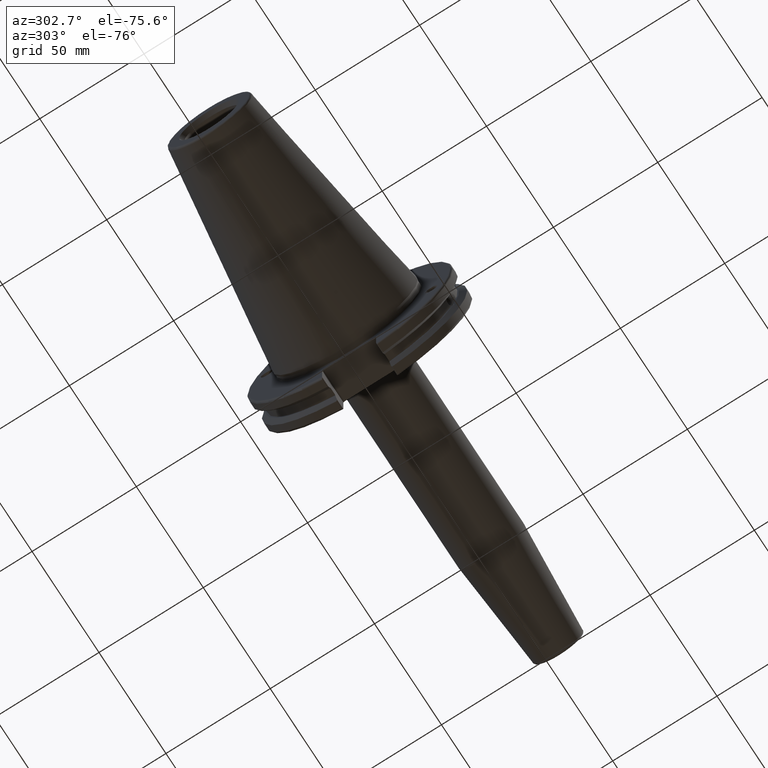
[diagram: clean part render]
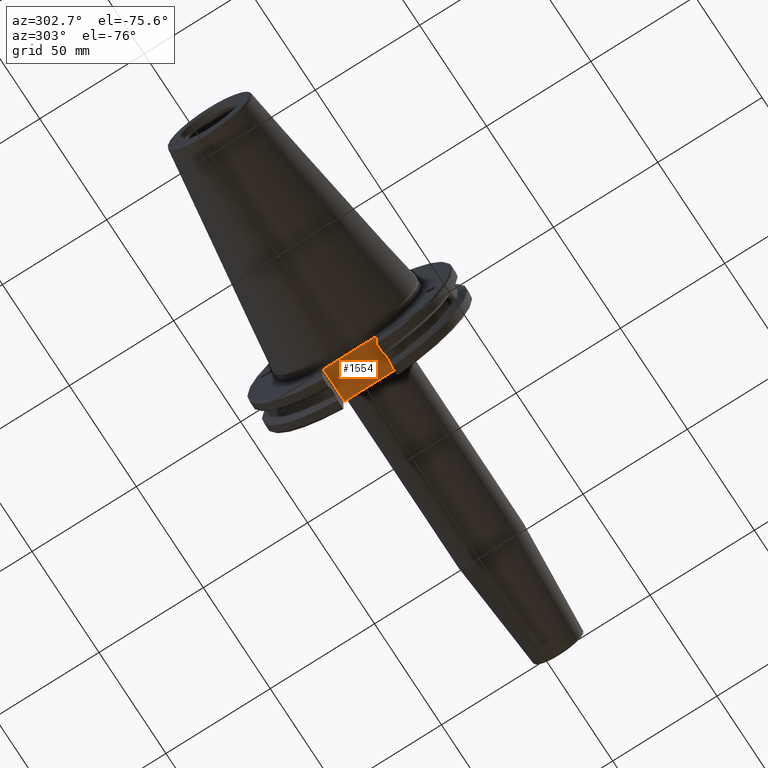
[diagram: same view with one face highlighted and labeled with its STEP entity id]
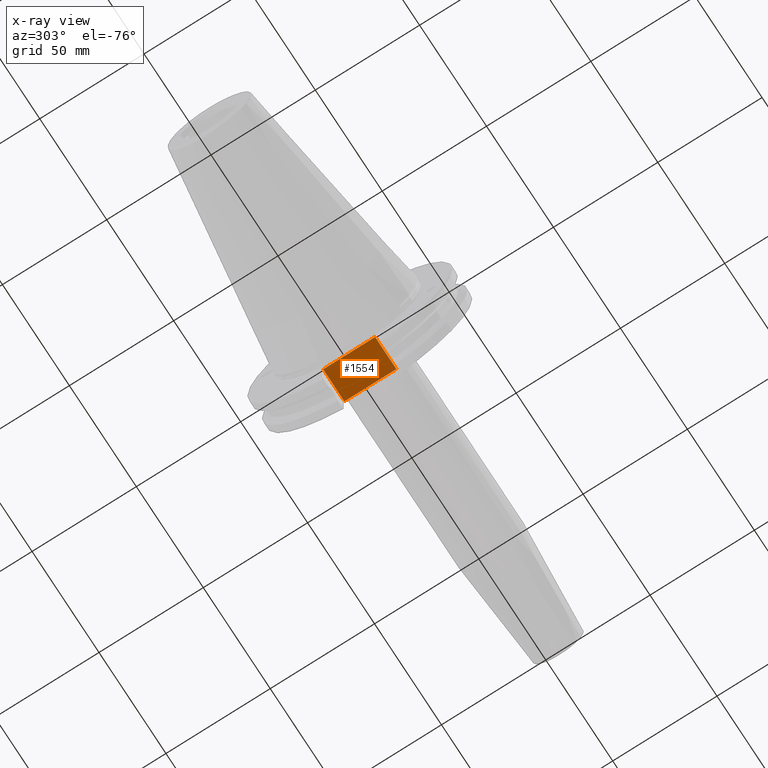
[diagram: x-ray of the same camera — body ghosted, the highlighted face saturated]
A machine part, auxiliary view. The second image highlights one B-rep face of the part: STEP entity #1554.
The next image is the same camera in x-ray: the body ghosted, the highlighted face saturated — about 0% of this face is hidden behind the body in this view.
In plain terms, the highlighted planar face has unit normal (0, 0, 1).
Its self-contained STEP definition (entity closure, byte-faithful):
#113=PLANE('',#1734);
#231=FACE_OUTER_BOUND('',#340,.T.);
#340=EDGE_LOOP('',(#1354,#1355,#1356,#1357));
#382=LINE('',#2271,#478);
#425=LINE('',#2866,#521);
#446=LINE('',#3078,#542);
#447=LINE('',#3080,#543);
#478=VECTOR('',#1839,10.);
#521=VECTOR('',#2032,10.);
#542=VECTOR('',#2111,10.);
#543=VECTOR('',#2114,10.);
#659=VERTEX_POINT('',#2268);
#660=VERTEX_POINT('',#2270);
#746=VERTEX_POINT('',#2863);
#747=VERTEX_POINT('',#2865);
#819=EDGE_CURVE('',#659,#660,#382,.T.);
#932=EDGE_CURVE('',#746,#747,#425,.T.);
#987=EDGE_CURVE('',#660,#746,#446,.T.);
#988=EDGE_CURVE('',#747,#659,#447,.T.);
#1354=ORIENTED_EDGE('',*,*,#987,.F.);
#1355=ORIENTED_EDGE('',*,*,#819,.F.);
#1356=ORIENTED_EDGE('',*,*,#988,.F.);
#1357=ORIENTED_EDGE('',*,*,#932,.F.);
#1554=ADVANCED_FACE('',(#231),#113,.F.);
#1734=AXIS2_PLACEMENT_3D('',#3079,#2112,#2113);
#1839=DIRECTION('',(0.,1.,0.));
#2032=DIRECTION('',(0.,-1.,0.));
#2111=DIRECTION('',(-1.,2.63163976207444E-16,0.));
#2112=DIRECTION('center_axis',(0.,0.,1.));
#2113=DIRECTION('ref_axis',(1.,0.,0.));
#2114=DIRECTION('',(1.,2.63163976207445E-16,0.));
#2268=CARTESIAN_POINT('',(19.05,-12.45,-35.306));
#2270=CARTESIAN_POINT('',(19.05,12.45,-35.306));
#2271=CARTESIAN_POINT('',(19.05,-3.33066907387547E-15,-35.306));
#2863=CARTESIAN_POINT('',(3.175,12.45,-35.306));
#2865=CARTESIAN_POINT('',(3.175,-12.45,-35.306));
#2866=CARTESIAN_POINT('',(3.175,24.60625,-35.306));
#3078=CARTESIAN_POINT('',(10.63125,12.45,-35.306));
#3079=CARTESIAN_POINT('Origin',(18.0875,-6.66133814775094E-15,-35.306));
#3080=CARTESIAN_POINT('',(19.06875,-12.45,-35.306));